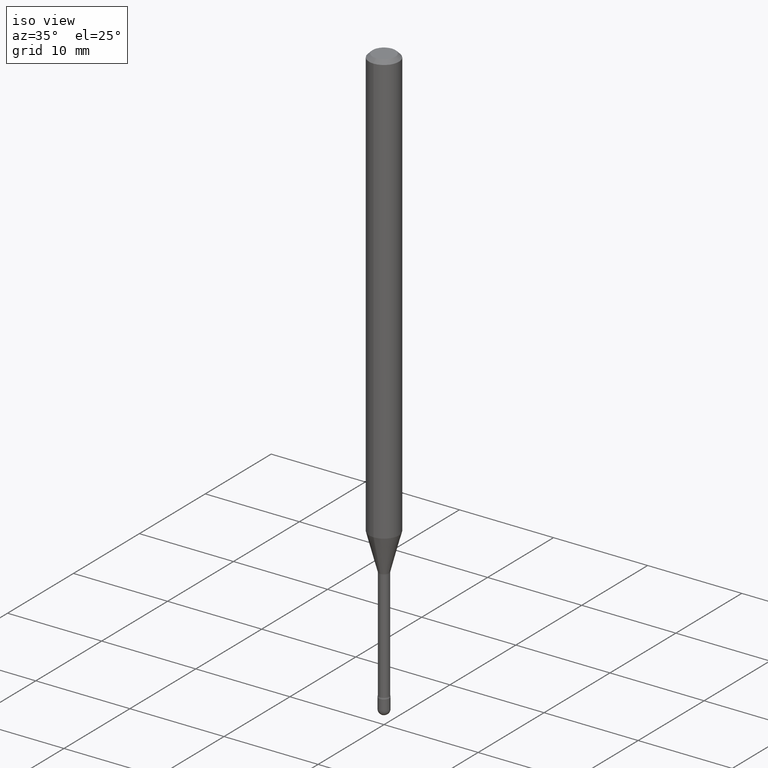
[diagram: clean part render]
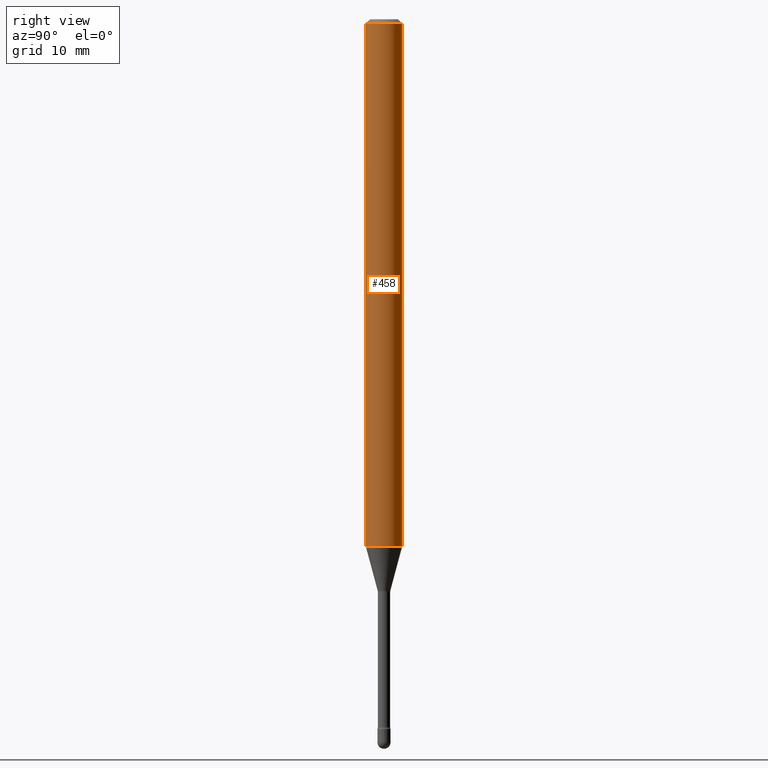
[diagram: tour spotlight — one face highlighted and labeled with its STEP entity id]
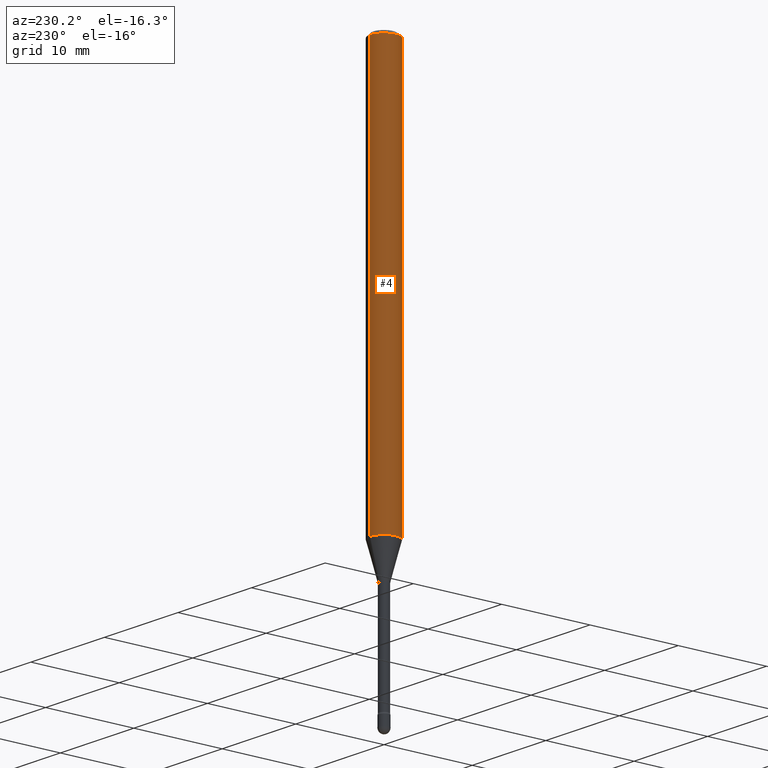
[diagram: tour spotlight — one face highlighted and labeled with its STEP entity id]
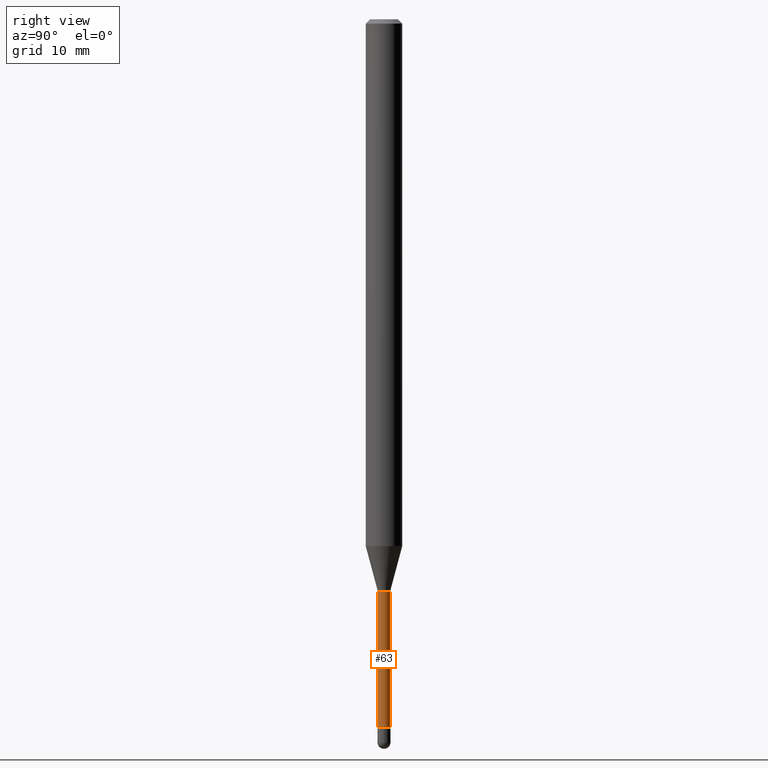
[diagram: tour spotlight — one face highlighted and labeled with its STEP entity id]
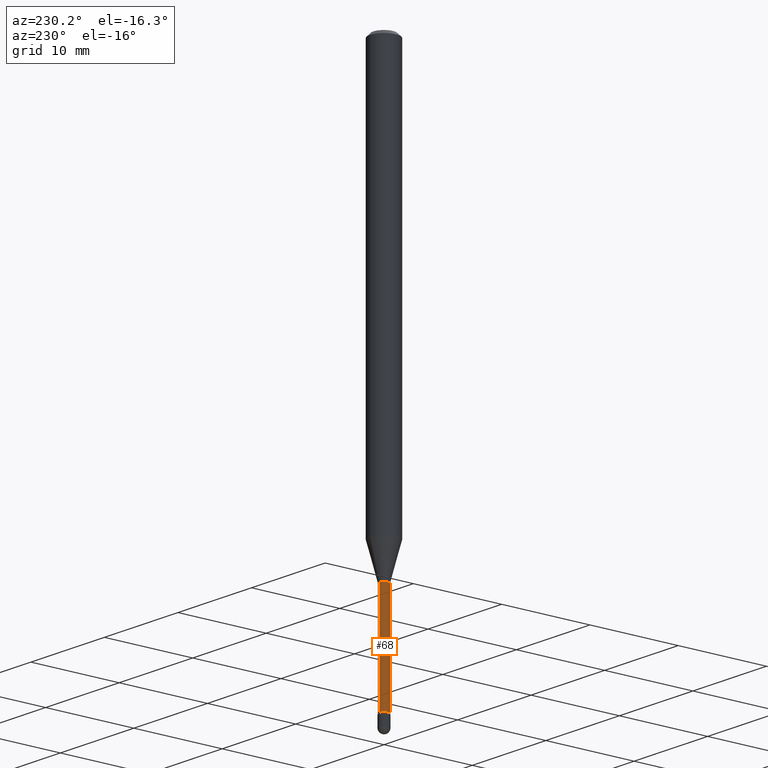
[diagram: tour spotlight — one face highlighted and labeled with its STEP entity id]
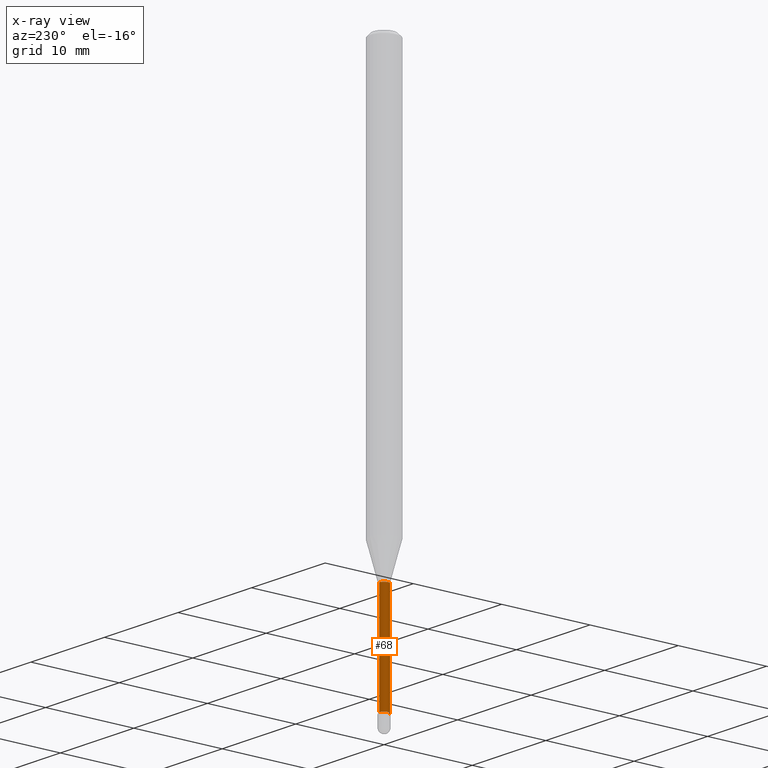
[diagram: x-ray of the same camera — body ghosted, this tour face saturated]
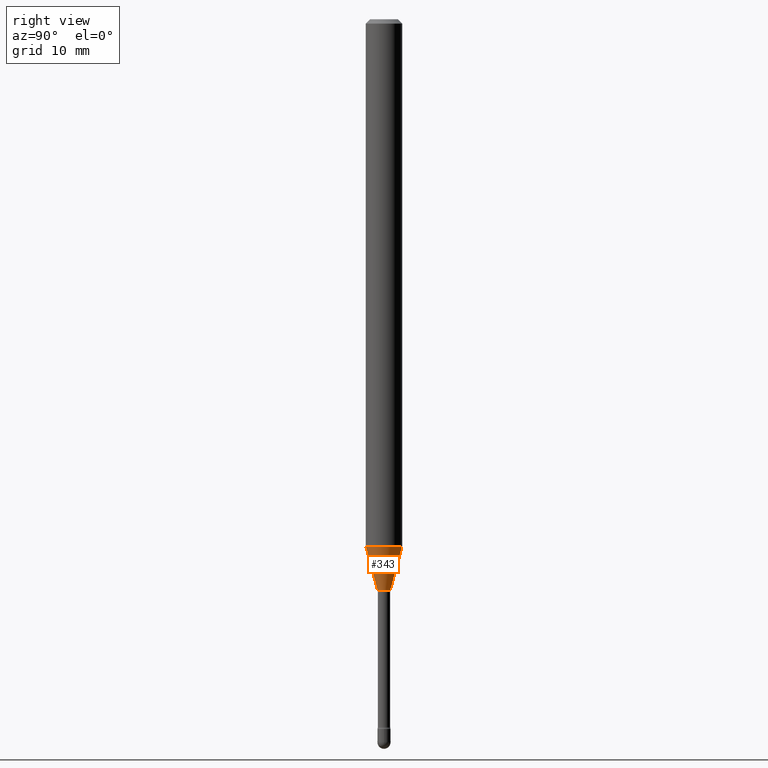
[diagram: tour spotlight — one face highlighted and labeled with its STEP entity id]
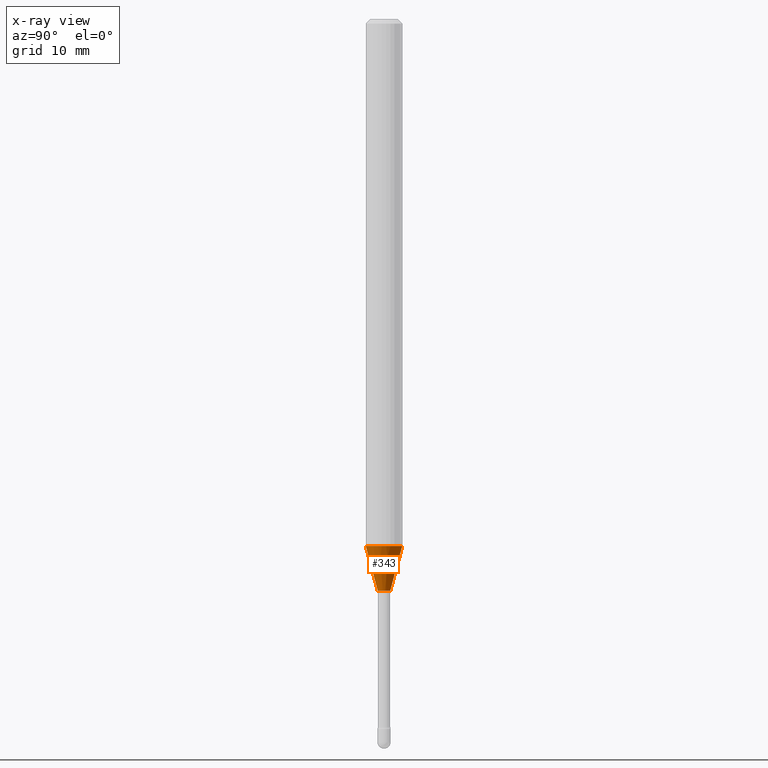
[diagram: x-ray of the same camera — body ghosted, this tour face saturated]
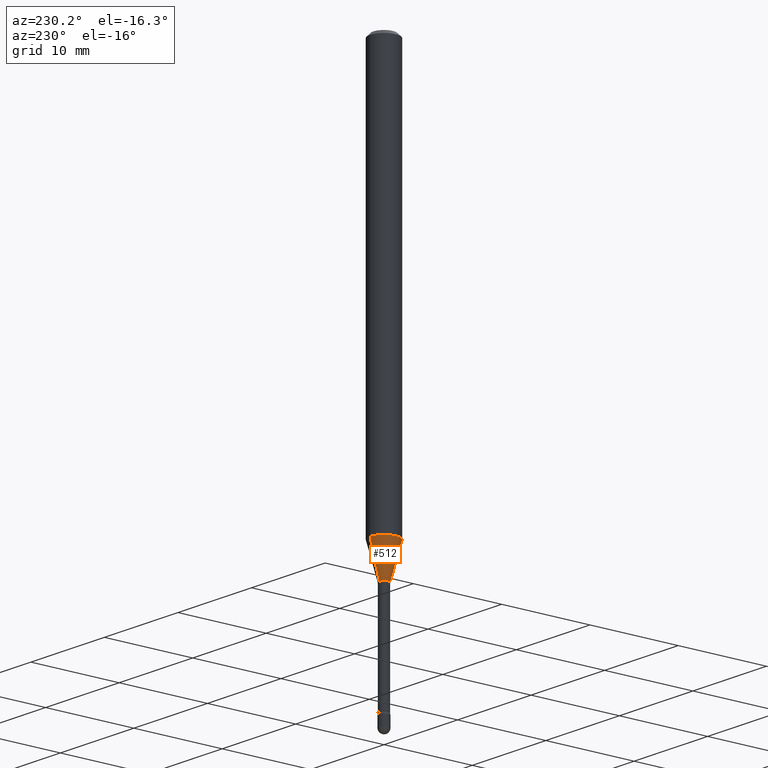
[diagram: tour spotlight — one face highlighted and labeled with its STEP entity id]
A machine part: a face-by-face anatomy tour. The part has 19 B-rep faces; the first image is the clean iso view, then the 6 largest visible faces are spotlighted one at a time (largest first), each with its STEP entity span.

Face 1 — right view, entity #458. In plain terms, the highlighted cylindrical surface (edge-blend (fillet) strip) has radius 1.5875 mm, axis along (-0, 0, 1).
Definition (entity closure, byte-faithful):
#2 = LINE ( 'NONE', #167, #525 ) ;
#12 = ORIENTED_EDGE ( 'NONE', *, *, #373, .F. ) ;
#17 = VERTEX_POINT ( 'NONE', #528 ) ;
#38 = CARTESIAN_POINT ( 'NONE',  ( -4.364351673553916201E-16, -0.06250000000000000000, 6.962949257592015306E-16 ) ) ;
#46 = EDGE_CURVE ( 'NONE', #17, #363, #2, .T. ) ;
#66 = DIRECTION ( 'NONE',  ( -2.445424749944483382E-29, 3.491544429887286295E-15, 1.000000000000000000 ) ) ;
#82 = DIRECTION ( 'NONE',  ( -2.445424749944483382E-29, 3.491544429887286295E-15, 1.000000000000000000 ) ) ;
#97 = EDGE_CURVE ( 'NONE', #136, #17, #135, .T. ) ;
#107 = AXIS2_PLACEMENT_3D ( 'NONE', #182, #236, #331 ) ;
#135 = CIRCLE ( 'NONE', #269, 0.06250000000000000000 ) ;
#136 = VERTEX_POINT ( 'NONE', #392 ) ;
#167 = CARTESIAN_POINT ( 'NONE',  ( 4.440892098500625669E-16, 0.06250000000000000000, 2.598518720232906451E-16 ) ) ;
#174 = CARTESIAN_POINT ( 'NONE',  ( -4.364351673553912750E-16, -0.06250000000000005551, -0.01499999999999986587 ) ) ;
#182 = CARTESIAN_POINT ( 'NONE',  ( -1.169113584055446105E-44, 1.669184350826100908E-30, 4.780733988912460139E-16 ) ) ;
#186 = FACE_OUTER_BOUND ( 'NONE', #412, .T. ) ;
#196 = VECTOR ( 'NONE', #66, 39.37007874015748143 ) ;
#236 = DIRECTION ( 'NONE',  ( -2.445424749944483382E-29, 3.491544429887286295E-15, 1.000000000000000000 ) ) ;
#269 = AXIS2_PLACEMENT_3D ( 'NONE', #356, #352, #308 ) ;
#277 = VERTEX_POINT ( 'NONE', #174 ) ;
#287 = CARTESIAN_POINT ( 'NONE',  ( 3.668137124916745339E-31, -5.237316644830958384E-17, -0.01500000000000008271 ) ) ;
#308 = DIRECTION ( 'NONE',  ( -6.982962677686265922E-15, -1.000000000000000000, 4.370956789862821150E-15 ) ) ;
#325 = CIRCLE ( 'NONE', #533, 0.06250000000000000000 ) ;
#331 = DIRECTION ( 'NONE',  ( -6.982962677686265922E-15, -1.000000000000000000, 3.491544429887286690E-15 ) ) ;
#333 = CARTESIAN_POINT ( 'NONE',  ( 4.440892098501069896E-16, 0.06249999999999995143, -0.01500000000000030129 ) ) ;
#352 = DIRECTION ( 'NONE',  ( -2.445424749944483382E-29, 3.491544429887286295E-15, 1.000000000000000000 ) ) ;
#356 = CARTESIAN_POINT ( 'NONE',  ( 4.415653826668632896E-29, -6.304610895577692645E-15, -1.805679699107027192 ) ) ;
#363 = VERTEX_POINT ( 'NONE', #333 ) ;
#371 = CYLINDRICAL_SURFACE ( 'NONE', #107, 0.06250000000000000000 ) ;
#373 = EDGE_CURVE ( 'NONE', #136, #277, #410, .T. ) ;
#392 = CARTESIAN_POINT ( 'NONE',  ( -4.364351673553475918E-16, -0.06250000000000632827, -1.805679699107026970 ) ) ;
#410 = LINE ( 'NONE', #38, #196 ) ;
#411 = EDGE_CURVE ( 'NONE', #277, #363, #325, .T. ) ;
#412 = EDGE_LOOP ( 'NONE', ( #531, #539, #522, #12 ) ) ;
#435 = DIRECTION ( 'NONE',  ( -2.445424749944483382E-29, 3.491544429887286295E-15, 1.000000000000000000 ) ) ;
#448 = DIRECTION ( 'NONE',  ( -6.982962677686265922E-15, -1.000000000000000000, 3.483106191921935554E-15 ) ) ;
#458 = ADVANCED_FACE ( 'NONE', ( #186 ), #371, .T. ) ;
#522 = ORIENTED_EDGE ( 'NONE', *, *, #411, .F. ) ;
#525 = VECTOR ( 'NONE', #82, 39.37007874015748143 ) ;
#528 = CARTESIAN_POINT ( 'NONE',  ( 4.440892098501065952E-16, 0.06249999999999367173, -1.805679699107027414 ) ) ;
#531 = ORIENTED_EDGE ( 'NONE', *, *, #97, .T. ) ;
#533 = AXIS2_PLACEMENT_3D ( 'NONE', #287, #435, #448 ) ;
#539 = ORIENTED_EDGE ( 'NONE', *, *, #46, .T. ) ;

Face 2 — auxiliary view, entity #4. In plain terms, the highlighted cylindrical surface (edge-blend (fillet) strip) has radius 1.5875 mm, axis along (-0, 0, 1).
Definition (entity closure, byte-faithful):
#2 = LINE ( 'NONE', #167, #525 ) ;
#4 = ADVANCED_FACE ( 'NONE', ( #351 ), #124, .T. ) ;
#17 = VERTEX_POINT ( 'NONE', #528 ) ;
#27 = AXIS2_PLACEMENT_3D ( 'NONE', #359, #32, #85 ) ;
#32 = DIRECTION ( 'NONE',  ( -2.445424749944483382E-29, 3.491544429887286295E-15, 1.000000000000000000 ) ) ;
#38 = CARTESIAN_POINT ( 'NONE',  ( -4.364351673553916201E-16, -0.06250000000000000000, 6.962949257592015306E-16 ) ) ;
#46 = EDGE_CURVE ( 'NONE', #17, #363, #2, .T. ) ;
#65 = EDGE_LOOP ( 'NONE', ( #161, #423, #344, #258 ) ) ;
#66 = DIRECTION ( 'NONE',  ( -2.445424749944483382E-29, 3.491544429887286295E-15, 1.000000000000000000 ) ) ;
#73 = DIRECTION ( 'NONE',  ( -2.445424749944483382E-29, 3.491544429887286295E-15, 1.000000000000000000 ) ) ;
#82 = DIRECTION ( 'NONE',  ( -2.445424749944483382E-29, 3.491544429887286295E-15, 1.000000000000000000 ) ) ;
#85 = DIRECTION ( 'NONE',  ( -6.982962677686265922E-15, -1.000000000000000000, 3.491544429887286690E-15 ) ) ;
#106 = CIRCLE ( 'NONE', #219, 0.06250000000000000000 ) ;
#124 = CYLINDRICAL_SURFACE ( 'NONE', #27, 0.06250000000000000000 ) ;
#134 = EDGE_CURVE ( 'NONE', #363, #277, #106, .T. ) ;
#136 = VERTEX_POINT ( 'NONE', #392 ) ;
#161 = ORIENTED_EDGE ( 'NONE', *, *, #46, .F. ) ;
#167 = CARTESIAN_POINT ( 'NONE',  ( 4.440892098500625669E-16, 0.06250000000000000000, 2.598518720232906451E-16 ) ) ;
#174 = CARTESIAN_POINT ( 'NONE',  ( -4.364351673553912750E-16, -0.06250000000000005551, -0.01499999999999986587 ) ) ;
#175 = CIRCLE ( 'NONE', #337, 0.06250000000000000000 ) ;
#196 = VECTOR ( 'NONE', #66, 39.37007874015748143 ) ;
#219 = AXIS2_PLACEMENT_3D ( 'NONE', #303, #532, #451 ) ;
#228 = EDGE_CURVE ( 'NONE', #17, #136, #175, .T. ) ;
#258 = ORIENTED_EDGE ( 'NONE', *, *, #134, .F. ) ;
#277 = VERTEX_POINT ( 'NONE', #174 ) ;
#303 = CARTESIAN_POINT ( 'NONE',  ( 3.668137124916745339E-31, -5.237316644830958384E-17, -0.01500000000000008271 ) ) ;
#333 = CARTESIAN_POINT ( 'NONE',  ( 4.440892098501069896E-16, 0.06249999999999995143, -0.01500000000000030129 ) ) ;
#337 = AXIS2_PLACEMENT_3D ( 'NONE', #346, #73, #524 ) ;
#344 = ORIENTED_EDGE ( 'NONE', *, *, #373, .T. ) ;
#346 = CARTESIAN_POINT ( 'NONE',  ( 4.415653826668632896E-29, -6.304610895577692645E-15, -1.805679699107027192 ) ) ;
#351 = FACE_OUTER_BOUND ( 'NONE', #65, .T. ) ;
#359 = CARTESIAN_POINT ( 'NONE',  ( -1.169113584055446105E-44, 1.669184350826100908E-30, 4.780733988912460139E-16 ) ) ;
#363 = VERTEX_POINT ( 'NONE', #333 ) ;
#373 = EDGE_CURVE ( 'NONE', #136, #277, #410, .T. ) ;
#392 = CARTESIAN_POINT ( 'NONE',  ( -4.364351673553475918E-16, -0.06250000000000632827, -1.805679699107026970 ) ) ;
#410 = LINE ( 'NONE', #38, #196 ) ;
#423 = ORIENTED_EDGE ( 'NONE', *, *, #228, .T. ) ;
#451 = DIRECTION ( 'NONE',  ( -6.982962677686265922E-15, -1.000000000000000000, 3.483106191921935554E-15 ) ) ;
#524 = DIRECTION ( 'NONE',  ( -6.982962677686265922E-15, -1.000000000000000000, 4.370956789862821150E-15 ) ) ;
#525 = VECTOR ( 'NONE', #82, 39.37007874015748143 ) ;
#528 = CARTESIAN_POINT ( 'NONE',  ( 4.440892098501065952E-16, 0.06249999999999367173, -1.805679699107027414 ) ) ;
#532 = DIRECTION ( 'NONE',  ( -2.445424749944483382E-29, 3.491544429887286295E-15, 1.000000000000000000 ) ) ;

Face 3 — right view, entity #63. In plain terms, the highlighted cylindrical surface (edge-blend (fillet) strip) has radius 0.5372 mm, axis along (-0, 0, 1).
Definition (entity closure, byte-faithful):
#7 = FACE_OUTER_BOUND ( 'NONE', #119, .T. ) ;
#20 = VERTEX_POINT ( 'NONE', #402 ) ;
#22 = DIRECTION ( 'NONE',  ( -2.445424749944483382E-29, 3.491544429887286295E-15, 1.000000000000000000 ) ) ;
#40 = CARTESIAN_POINT ( 'NONE',  ( -1.476896606330055594E-16, -0.02115000000000851962, -2.425780876267511932 ) ) ;
#58 = EDGE_CURVE ( 'NONE', #20, #369, #88, .T. ) ;
#63 = ADVANCED_FACE ( 'NONE', ( #7 ), #127, .T. ) ;
#71 = AXIS2_PLACEMENT_3D ( 'NONE', #384, #355, #306 ) ;
#77 = DIRECTION ( 'NONE',  ( -6.982962677686266711E-15, -1.000000000000000000, 0.000000000000000000 ) ) ;
#88 = CIRCLE ( 'NONE', #428, 0.02114999999999999866 ) ;
#114 = ORIENTED_EDGE ( 'NONE', *, *, #422, .T. ) ;
#116 = CARTESIAN_POINT ( 'NONE',  ( 4.797861704031071659E-29, -6.850322140748562007E-15, -1.961974787463811154 ) ) ;
#117 = CARTESIAN_POINT ( 'NONE',  ( 1.502797886133206648E-16, 0.02114999999999314997, -1.961974787463811154 ) ) ;
#118 = CARTESIAN_POINT ( 'NONE',  ( -1.476896606330647239E-16, -0.02115000000000002642, 5.519195635833622872E-16 ) ) ;
#119 = EDGE_LOOP ( 'NONE', ( #114, #388, #504, #323 ) ) ;
#127 = CYLINDRICAL_SURFACE ( 'NONE', #564, 0.02115000000000002642 ) ;
#183 = EDGE_CURVE ( 'NONE', #214, #20, #530, .T. ) ;
#214 = VERTEX_POINT ( 'NONE', #40 ) ;
#306 = DIRECTION ( 'NONE',  ( -6.982962677686266711E-15, -1.000000000000000000, 0.000000000000000000 ) ) ;
#311 = DIRECTION ( 'NONE',  ( -2.445424749944483382E-29, 3.491544429887286295E-15, 1.000000000000000000 ) ) ;
#323 = ORIENTED_EDGE ( 'NONE', *, *, #183, .F. ) ;
#338 = CARTESIAN_POINT ( 'NONE',  ( 1.502797886132613524E-16, 0.02115000000000002642, 4.042272341991298886E-16 ) ) ;
#340 = CARTESIAN_POINT ( 'NONE',  ( -1.169113584055446105E-44, 1.669184350826100908E-30, 4.780733988912460139E-16 ) ) ;
#355 = DIRECTION ( 'NONE',  ( -2.445424749944483382E-29, 3.491544429887286295E-15, 1.000000000000000000 ) ) ;
#369 = VERTEX_POINT ( 'NONE', #117 ) ;
#381 = CARTESIAN_POINT ( 'NONE',  ( 1.550759520797014538E-16, 0.02114999999999158178, -2.425780876267511932 ) ) ;
#384 = CARTESIAN_POINT ( 'NONE',  ( 5.932064592766590079E-29, -8.469721706658931478E-15, -2.425780876267511932 ) ) ;
#388 = ORIENTED_EDGE ( 'NONE', *, *, #466, .T. ) ;
#402 = CARTESIAN_POINT ( 'NONE',  ( -1.476896606330165541E-16, -0.02115000000000685082, -1.961974787463811154 ) ) ;
#422 = EDGE_CURVE ( 'NONE', #214, #536, #500, .T. ) ;
#428 = AXIS2_PLACEMENT_3D ( 'NONE', #116, #487, #77 ) ;
#465 = LINE ( 'NONE', #338, #490 ) ;
#466 = EDGE_CURVE ( 'NONE', #536, #369, #465, .T. ) ;
#479 = VECTOR ( 'NONE', #489, 39.37007874015748143 ) ;
#487 = DIRECTION ( 'NONE',  ( -2.445424749944483382E-29, 3.491544429887286295E-15, 1.000000000000000000 ) ) ;
#489 = DIRECTION ( 'NONE',  ( -2.445424749944483382E-29, 3.491544429887286295E-15, 1.000000000000000000 ) ) ;
#490 = VECTOR ( 'NONE', #22, 39.37007874015748143 ) ;
#499 = DIRECTION ( 'NONE',  ( -6.982962677686266711E-15, -1.000000000000000000, 3.491544429887285112E-15 ) ) ;
#500 = CIRCLE ( 'NONE', #71, 0.02115000000000005070 ) ;
#504 = ORIENTED_EDGE ( 'NONE', *, *, #58, .F. ) ;
#530 = LINE ( 'NONE', #118, #479 ) ;
#536 = VERTEX_POINT ( 'NONE', #381 ) ;
#564 = AXIS2_PLACEMENT_3D ( 'NONE', #340, #311, #499 ) ;

Face 4 — auxiliary view, entity #68. An x-ray twin of the same camera follows (body ghosted, this face saturated) — the face is partly hidden behind the body. In plain terms, the highlighted cylindrical surface (edge-blend (fillet) strip) has radius 0.5372 mm, axis along (-0, 0, 1).
Definition (entity closure, byte-faithful):
#20 = VERTEX_POINT ( 'NONE', #402 ) ;
#22 = DIRECTION ( 'NONE',  ( -2.445424749944483382E-29, 3.491544429887286295E-15, 1.000000000000000000 ) ) ;
#40 = CARTESIAN_POINT ( 'NONE',  ( -1.476896606330055594E-16, -0.02115000000000851962, -2.425780876267511932 ) ) ;
#68 = ADVANCED_FACE ( 'NONE', ( #172 ), #131, .T. ) ;
#110 = DIRECTION ( 'NONE',  ( -2.445424749944483382E-29, 3.491544429887286295E-15, 1.000000000000000000 ) ) ;
#117 = CARTESIAN_POINT ( 'NONE',  ( 1.502797886133206648E-16, 0.02114999999999314997, -1.961974787463811154 ) ) ;
#118 = CARTESIAN_POINT ( 'NONE',  ( -1.476896606330647239E-16, -0.02115000000000002642, 5.519195635833622872E-16 ) ) ;
#131 = CYLINDRICAL_SURFACE ( 'NONE', #247, 0.02115000000000002642 ) ;
#143 = CARTESIAN_POINT ( 'NONE',  ( 5.932064592766590079E-29, -8.469721706658931478E-15, -2.425780876267511932 ) ) ;
#150 = ORIENTED_EDGE ( 'NONE', *, *, #477, .F. ) ;
#172 = FACE_OUTER_BOUND ( 'NONE', #204, .T. ) ;
#183 = EDGE_CURVE ( 'NONE', #214, #20, #530, .T. ) ;
#188 = CARTESIAN_POINT ( 'NONE',  ( 4.797861704031071659E-29, -6.850322140748562007E-15, -1.961974787463811154 ) ) ;
#189 = DIRECTION ( 'NONE',  ( -6.982962677686266711E-15, -1.000000000000000000, 0.000000000000000000 ) ) ;
#204 = EDGE_LOOP ( 'NONE', ( #460, #320, #549, #150 ) ) ;
#214 = VERTEX_POINT ( 'NONE', #40 ) ;
#220 = CIRCLE ( 'NONE', #492, 0.02114999999999999866 ) ;
#223 = DIRECTION ( 'NONE',  ( -2.445424749944483382E-29, 3.491544429887286295E-15, 1.000000000000000000 ) ) ;
#247 = AXIS2_PLACEMENT_3D ( 'NONE', #314, #362, #566 ) ;
#314 = CARTESIAN_POINT ( 'NONE',  ( -1.169113584055446105E-44, 1.669184350826100908E-30, 4.780733988912460139E-16 ) ) ;
#320 = ORIENTED_EDGE ( 'NONE', *, *, #563, .T. ) ;
#338 = CARTESIAN_POINT ( 'NONE',  ( 1.502797886132613524E-16, 0.02115000000000002642, 4.042272341991298886E-16 ) ) ;
#362 = DIRECTION ( 'NONE',  ( -2.445424749944483382E-29, 3.491544429887286295E-15, 1.000000000000000000 ) ) ;
#369 = VERTEX_POINT ( 'NONE', #117 ) ;
#381 = CARTESIAN_POINT ( 'NONE',  ( 1.550759520797014538E-16, 0.02114999999999158178, -2.425780876267511932 ) ) ;
#402 = CARTESIAN_POINT ( 'NONE',  ( -1.476896606330165541E-16, -0.02115000000000685082, -1.961974787463811154 ) ) ;
#427 = DIRECTION ( 'NONE',  ( -6.982962677686266711E-15, -1.000000000000000000, 0.000000000000000000 ) ) ;
#456 = AXIS2_PLACEMENT_3D ( 'NONE', #143, #223, #427 ) ;
#460 = ORIENTED_EDGE ( 'NONE', *, *, #466, .F. ) ;
#465 = LINE ( 'NONE', #338, #490 ) ;
#466 = EDGE_CURVE ( 'NONE', #536, #369, #465, .T. ) ;
#477 = EDGE_CURVE ( 'NONE', #369, #20, #220, .T. ) ;
#479 = VECTOR ( 'NONE', #489, 39.37007874015748143 ) ;
#489 = DIRECTION ( 'NONE',  ( -2.445424749944483382E-29, 3.491544429887286295E-15, 1.000000000000000000 ) ) ;
#490 = VECTOR ( 'NONE', #22, 39.37007874015748143 ) ;
#492 = AXIS2_PLACEMENT_3D ( 'NONE', #188, #110, #189 ) ;
#519 = CIRCLE ( 'NONE', #456, 0.02115000000000005070 ) ;
#530 = LINE ( 'NONE', #118, #479 ) ;
#536 = VERTEX_POINT ( 'NONE', #381 ) ;
#549 = ORIENTED_EDGE ( 'NONE', *, *, #183, .T. ) ;
#563 = EDGE_CURVE ( 'NONE', #536, #214, #519, .T. ) ;
#566 = DIRECTION ( 'NONE',  ( -6.982962677686266711E-15, -1.000000000000000000, 3.491544429887285112E-15 ) ) ;

Face 5 — right view, entity #343. An x-ray twin of the same camera follows (body ghosted, this face saturated) — the face is partly hidden behind the body. In plain terms, the highlighted conical surface has half-angle 15 deg.
Definition (entity closure, byte-faithful):
#5 = EDGE_CURVE ( 'NONE', #511, #447, #478, .T. ) ;
#17 = VERTEX_POINT ( 'NONE', #528 ) ;
#31 = CARTESIAN_POINT ( 'NONE',  ( 2.990003359772577671E-16, 0.02166111260565713875, -1.958092501787273232 ) ) ;
#36 = DIRECTION ( 'NONE',  ( -1.807323732225326195E-15, -0.2588190451025176309, 0.9659258262890690894 ) ) ;
#41 = CARTESIAN_POINT ( 'NONE',  ( 4.788367866551310556E-29, -6.836766967819414724E-15, -1.958092501787273232 ) ) ;
#42 = ORIENTED_EDGE ( 'NONE', *, *, #443, .F. ) ;
#76 = CARTESIAN_POINT ( 'NONE',  ( -1.512587408824631926E-16, -0.02166111260567081531, -1.958092501787273232 ) ) ;
#87 = ORIENTED_EDGE ( 'NONE', *, *, #237, .T. ) ;
#92 = EDGE_LOOP ( 'NONE', ( #148, #87, #495, #42 ) ) ;
#96 = CONICAL_SURFACE ( 'NONE', #436, 0.02166111260566397703, 0.2617993877991496854 ) ;
#97 = EDGE_CURVE ( 'NONE', #136, #17, #135, .T. ) ;
#135 = CIRCLE ( 'NONE', #269, 0.06250000000000000000 ) ;
#136 = VERTEX_POINT ( 'NONE', #392 ) ;
#148 = ORIENTED_EDGE ( 'NONE', *, *, #5, .T. ) ;
#159 = VECTOR ( 'NONE', #245, 39.37007874015748143 ) ;
#180 = CARTESIAN_POINT ( 'NONE',  ( 4.788367866551310556E-29, -6.836766967819414724E-15, -1.958092501787273232 ) ) ;
#201 = DIRECTION ( 'NONE',  ( -6.982962677686266711E-15, -1.000000000000000000, 0.000000000000000000 ) ) ;
#205 = AXIS2_PLACEMENT_3D ( 'NONE', #41, #538, #201 ) ;
#237 = EDGE_CURVE ( 'NONE', #447, #17, #562, .T. ) ;
#245 = DIRECTION ( 'NONE',  ( 1.839019923739596371E-15, 0.2588190451025244032, 0.9659258262890673130 ) ) ;
#268 = FACE_OUTER_BOUND ( 'NONE', #92, .T. ) ;
#269 = AXIS2_PLACEMENT_3D ( 'NONE', #356, #352, #308 ) ;
#273 = DIRECTION ( 'NONE',  ( -6.982962677686266711E-15, -1.000000000000000000, 0.000000000000000000 ) ) ;
#283 = CARTESIAN_POINT ( 'NONE',  ( -1.512587408824631926E-16, -0.02166111260567081531, -1.958092501787273232 ) ) ;
#308 = DIRECTION ( 'NONE',  ( -6.982962677686265922E-15, -1.000000000000000000, 4.370956789862821150E-15 ) ) ;
#343 = ADVANCED_FACE ( 'NONE', ( #268 ), #96, .T. ) ;
#352 = DIRECTION ( 'NONE',  ( -2.445424749944483382E-29, 3.491544429887286295E-15, 1.000000000000000000 ) ) ;
#356 = CARTESIAN_POINT ( 'NONE',  ( 4.415653826668632896E-29, -6.304610895577692645E-15, -1.805679699107027192 ) ) ;
#392 = CARTESIAN_POINT ( 'NONE',  ( -4.364351673553475918E-16, -0.06250000000000632827, -1.805679699107026970 ) ) ;
#436 = AXIS2_PLACEMENT_3D ( 'NONE', #180, #516, #273 ) ;
#437 = LINE ( 'NONE', #76, #551 ) ;
#443 = EDGE_CURVE ( 'NONE', #511, #136, #437, .T. ) ;
#447 = VERTEX_POINT ( 'NONE', #31 ) ;
#478 = CIRCLE ( 'NONE', #205, 0.02166111260566397703 ) ;
#482 = CARTESIAN_POINT ( 'NONE',  ( 1.539114621044086185E-16, 0.02166111260565713875, -1.958092501787273232 ) ) ;
#495 = ORIENTED_EDGE ( 'NONE', *, *, #97, .F. ) ;
#511 = VERTEX_POINT ( 'NONE', #283 ) ;
#516 = DIRECTION ( 'NONE',  ( -2.445424749944483382E-29, 3.491544429887286295E-15, 1.000000000000000000 ) ) ;
#528 = CARTESIAN_POINT ( 'NONE',  ( 4.440892098501065952E-16, 0.06249999999999367173, -1.805679699107027414 ) ) ;
#538 = DIRECTION ( 'NONE',  ( -2.445424749944483382E-29, 3.491544429887286295E-15, 1.000000000000000000 ) ) ;
#551 = VECTOR ( 'NONE', #36, 39.37007874015748854 ) ;
#562 = LINE ( 'NONE', #482, #159 ) ;

Face 6 — auxiliary view, entity #512. In plain terms, the highlighted conical surface has half-angle 15 deg.
Definition (entity closure, byte-faithful):
#17 = VERTEX_POINT ( 'NONE', #528 ) ;
#26 = ORIENTED_EDGE ( 'NONE', *, *, #234, .T. ) ;
#31 = CARTESIAN_POINT ( 'NONE',  ( 2.990003359772577671E-16, 0.02166111260565713875, -1.958092501787273232 ) ) ;
#36 = DIRECTION ( 'NONE',  ( -1.807323732225326195E-15, -0.2588190451025176309, 0.9659258262890690894 ) ) ;
#53 = AXIS2_PLACEMENT_3D ( 'NONE', #242, #439, #193 ) ;
#73 = DIRECTION ( 'NONE',  ( -2.445424749944483382E-29, 3.491544429887286295E-15, 1.000000000000000000 ) ) ;
#76 = CARTESIAN_POINT ( 'NONE',  ( -1.512587408824631926E-16, -0.02166111260567081531, -1.958092501787273232 ) ) ;
#94 = EDGE_LOOP ( 'NONE', ( #198, #26, #246, #318 ) ) ;
#101 = CARTESIAN_POINT ( 'NONE',  ( 4.788367866551310556E-29, -6.836766967819414724E-15, -1.958092501787273232 ) ) ;
#136 = VERTEX_POINT ( 'NONE', #392 ) ;
#159 = VECTOR ( 'NONE', #245, 39.37007874015748143 ) ;
#175 = CIRCLE ( 'NONE', #337, 0.06250000000000000000 ) ;
#187 = AXIS2_PLACEMENT_3D ( 'NONE', #101, #556, #278 ) ;
#193 = DIRECTION ( 'NONE',  ( -6.982962677686266711E-15, -1.000000000000000000, 0.000000000000000000 ) ) ;
#198 = ORIENTED_EDGE ( 'NONE', *, *, #237, .F. ) ;
#227 = CONICAL_SURFACE ( 'NONE', #187, 0.02166111260566397703, 0.2617993877991496854 ) ;
#228 = EDGE_CURVE ( 'NONE', #17, #136, #175, .T. ) ;
#234 = EDGE_CURVE ( 'NONE', #447, #511, #455, .T. ) ;
#237 = EDGE_CURVE ( 'NONE', #447, #17, #562, .T. ) ;
#242 = CARTESIAN_POINT ( 'NONE',  ( 4.788367866551310556E-29, -6.836766967819414724E-15, -1.958092501787273232 ) ) ;
#245 = DIRECTION ( 'NONE',  ( 1.839019923739596371E-15, 0.2588190451025244032, 0.9659258262890673130 ) ) ;
#246 = ORIENTED_EDGE ( 'NONE', *, *, #443, .T. ) ;
#278 = DIRECTION ( 'NONE',  ( -6.982962677686266711E-15, -1.000000000000000000, 0.000000000000000000 ) ) ;
#283 = CARTESIAN_POINT ( 'NONE',  ( -1.512587408824631926E-16, -0.02166111260567081531, -1.958092501787273232 ) ) ;
#318 = ORIENTED_EDGE ( 'NONE', *, *, #228, .F. ) ;
#337 = AXIS2_PLACEMENT_3D ( 'NONE', #346, #73, #524 ) ;
#346 = CARTESIAN_POINT ( 'NONE',  ( 4.415653826668632896E-29, -6.304610895577692645E-15, -1.805679699107027192 ) ) ;
#392 = CARTESIAN_POINT ( 'NONE',  ( -4.364351673553475918E-16, -0.06250000000000632827, -1.805679699107026970 ) ) ;
#437 = LINE ( 'NONE', #76, #551 ) ;
#439 = DIRECTION ( 'NONE',  ( -2.445424749944483382E-29, 3.491544429887286295E-15, 1.000000000000000000 ) ) ;
#443 = EDGE_CURVE ( 'NONE', #511, #136, #437, .T. ) ;
#447 = VERTEX_POINT ( 'NONE', #31 ) ;
#455 = CIRCLE ( 'NONE', #53, 0.02166111260566397703 ) ;
#468 = FACE_OUTER_BOUND ( 'NONE', #94, .T. ) ;
#482 = CARTESIAN_POINT ( 'NONE',  ( 1.539114621044086185E-16, 0.02166111260565713875, -1.958092501787273232 ) ) ;
#511 = VERTEX_POINT ( 'NONE', #283 ) ;
#512 = ADVANCED_FACE ( 'NONE', ( #468 ), #227, .T. ) ;
#524 = DIRECTION ( 'NONE',  ( -6.982962677686265922E-15, -1.000000000000000000, 4.370956789862821150E-15 ) ) ;
#528 = CARTESIAN_POINT ( 'NONE',  ( 4.440892098501065952E-16, 0.06249999999999367173, -1.805679699107027414 ) ) ;
#551 = VECTOR ( 'NONE', #36, 39.37007874015748854 ) ;
#556 = DIRECTION ( 'NONE',  ( -2.445424749944483382E-29, 3.491544429887286295E-15, 1.000000000000000000 ) ) ;
#562 = LINE ( 'NONE', #482, #159 ) ;